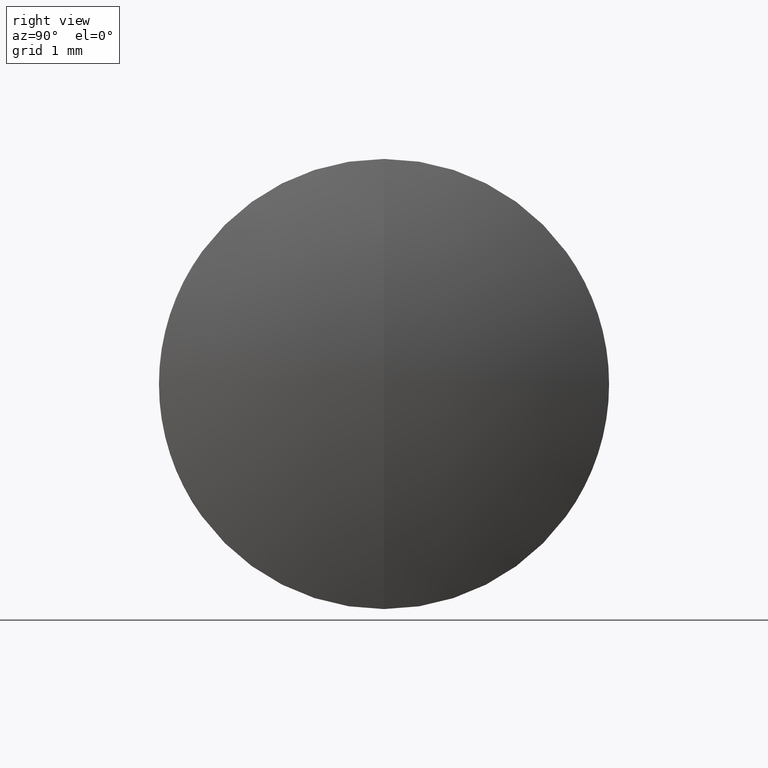
[diagram: clean part render]
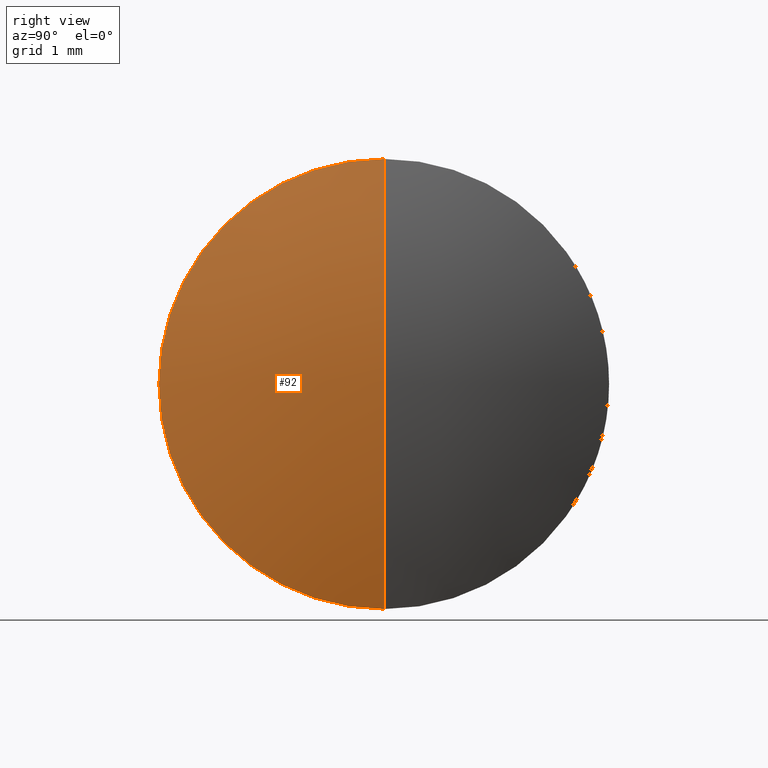
[diagram: same view with one face highlighted and labeled with its STEP entity id]
A machine part, right view. The second image highlights one B-rep face of the part: STEP entity #92.
In plain terms, the highlighted spherical surface has radius 9.2 mm.
Its self-contained STEP definition (entity closure, byte-faithful):
#17 = DIRECTION ( 'NONE',  ( -1.000000000000000000, -0.0000000000000000000, -0.0000000000000000000 ) ) ;
#27 = EDGE_LOOP ( 'NONE', ( #159, #36, #113 ) ) ;
#30 = AXIS2_PLACEMENT_3D ( 'NONE', #228, #69, #310 ) ;
#36 = ORIENTED_EDGE ( 'NONE', *, *, #200, .T. ) ;
#44 = DIRECTION ( 'NONE',  ( 0.0000000000000000000, 0.0000000000000000000, 1.000000000000000000 ) ) ;
#45 = VERTEX_POINT ( 'NONE', #281 ) ;
#48 = CARTESIAN_POINT ( 'NONE',  ( -4.490407782838510700, 0.0000000000000000000, 0.0000000000000000000 ) ) ;
#69 = DIRECTION ( 'NONE',  ( -0.0000000000000000000, -1.000000000000000000, -0.0000000000000000000 ) ) ;
#82 = AXIS2_PLACEMENT_3D ( 'NONE', #48, #185, #143 ) ;
#90 = EDGE_CURVE ( 'NONE', #93, #45, #138, .T. ) ;
#92 = ADVANCED_FACE ( 'NONE', ( #163 ), #167, .T. ) ;
#93 = VERTEX_POINT ( 'NONE', #313 ) ;
#103 = CARTESIAN_POINT ( 'NONE',  ( -4.490407782838510700, 0.0000000000000000000, 0.0000000000000000000 ) ) ;
#105 = VERTEX_POINT ( 'NONE', #225 ) ;
#113 = ORIENTED_EDGE ( 'NONE', *, *, #321, .F. ) ;
#138 = CIRCLE ( 'NONE', #344, 9.199999999999999300 ) ;
#143 = DIRECTION ( 'NONE',  ( 0.0000000000000000000, 1.224646799147353200E-016, -1.000000000000000000 ) ) ;
#159 = ORIENTED_EDGE ( 'NONE', *, *, #90, .F. ) ;
#163 = FACE_OUTER_BOUND ( 'NONE', #27, .T. ) ;
#167 = SPHERICAL_SURFACE ( 'NONE', #30, 9.199999999999999300 ) ;
#185 = DIRECTION ( 'NONE',  ( 0.0000000000000000000, -1.000000000000000000, -1.224646799147353200E-016 ) ) ;
#191 = AXIS2_PLACEMENT_3D ( 'NONE', #201, #17, #44 ) ;
#200 = EDGE_CURVE ( 'NONE', #93, #105, #236, .T. ) ;
#201 = CARTESIAN_POINT ( 'NONE',  ( 4.206718179225045900, 0.0000000000000000000, 0.0000000000000000000 ) ) ;
#215 = CIRCLE ( 'NONE', #191, 3.000000000000000000 ) ;
#225 = CARTESIAN_POINT ( 'NONE',  ( 4.206718179225045900, -3.673940397442063300E-016, 3.000000000000003600 ) ) ;
#228 = CARTESIAN_POINT ( 'NONE',  ( -4.490407782838510700, 0.0000000000000000000, 0.0000000000000000000 ) ) ;
#229 = DIRECTION ( 'NONE',  ( 0.0000000000000000000, 0.0000000000000000000, 1.000000000000000000 ) ) ;
#236 = CIRCLE ( 'NONE', #82, 9.199999999999999300 ) ;
#247 = DIRECTION ( 'NONE',  ( 0.0000000000000000000, 1.000000000000000000, -0.0000000000000000000 ) ) ;
#281 = CARTESIAN_POINT ( 'NONE',  ( 4.206718179225045900, 0.0000000000000000000, -3.000000000000003600 ) ) ;
#310 = DIRECTION ( 'NONE',  ( 0.0000000000000000000, 0.0000000000000000000, -1.000000000000000000 ) ) ;
#313 = CARTESIAN_POINT ( 'NONE',  ( 4.709592217161488600, 0.0000000000000000000, -5.633375276077824100E-016 ) ) ;
#321 = EDGE_CURVE ( 'NONE', #45, #105, #215, .T. ) ;
#344 = AXIS2_PLACEMENT_3D ( 'NONE', #103, #247, #229 ) ;